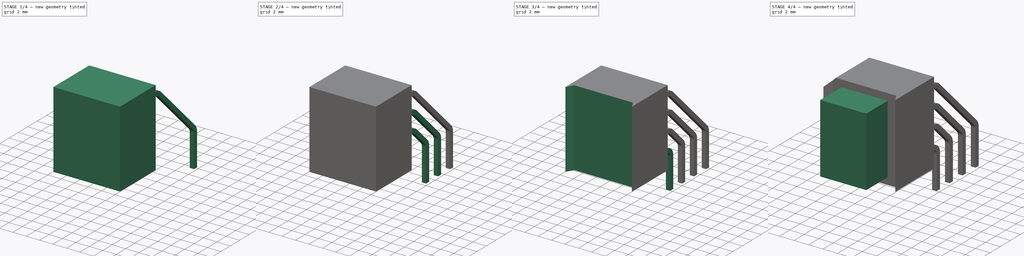
[diagram: build sequence overview — one tinted view per stage of 4, left to right]
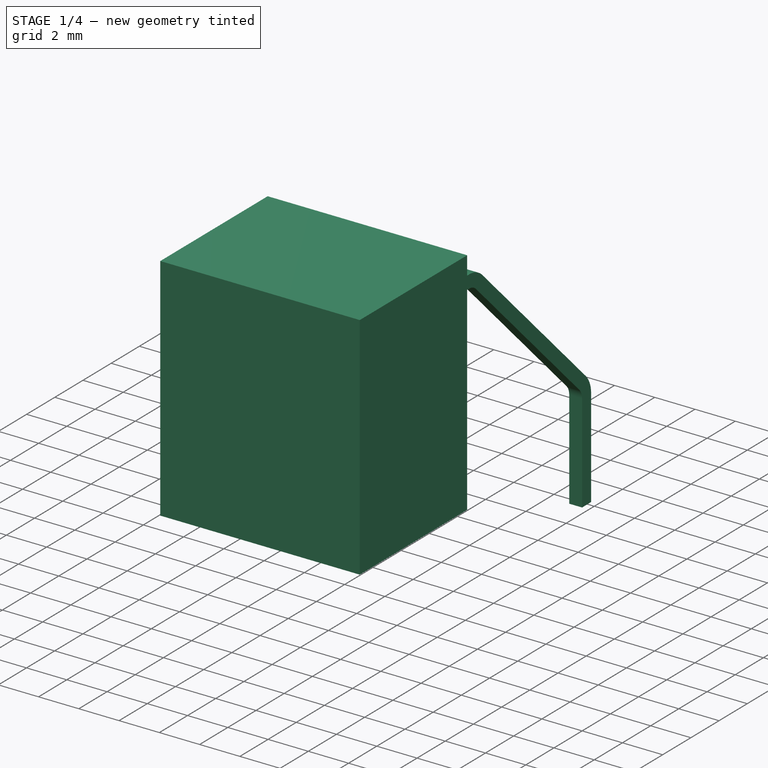
[diagram: stage 1 of 4 — iso view after this stage's code; geometry added in this stage tinted green]
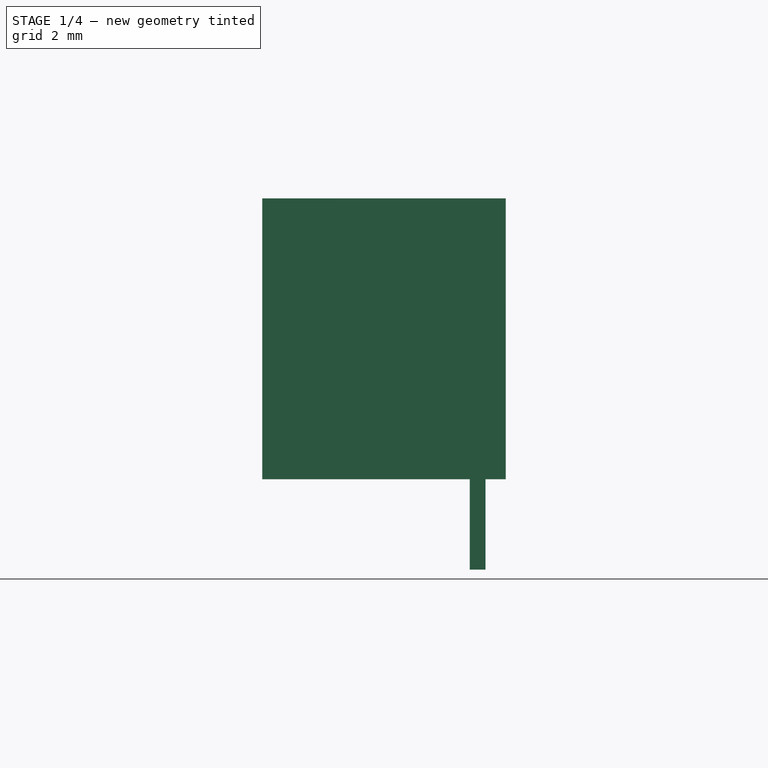
[diagram: stage 1 of 4 — front view after this stage's code; geometry added in this stage tinted green]
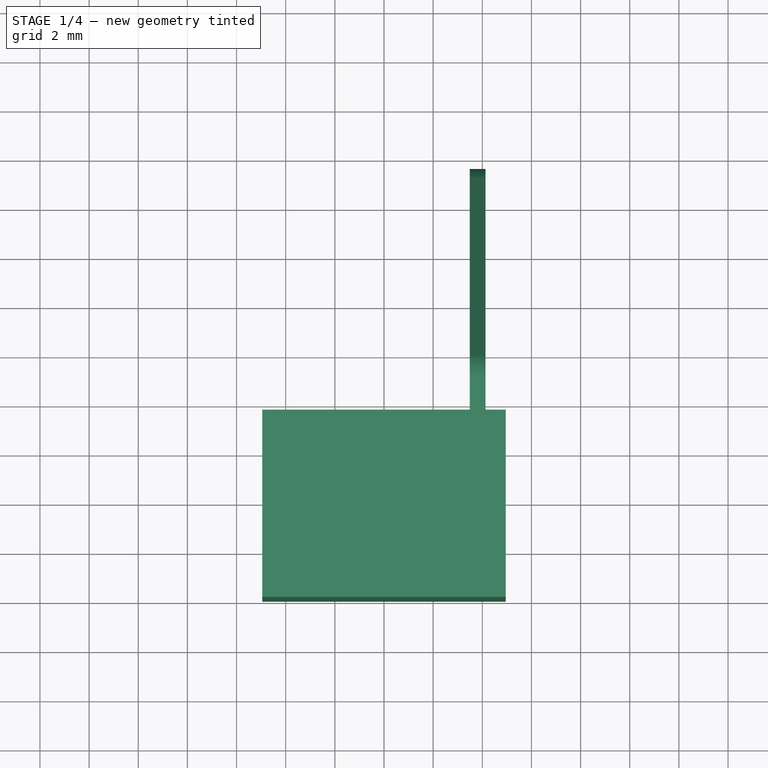
[diagram: stage 1 of 4 — top view after this stage's code; geometry added in this stage tinted green]
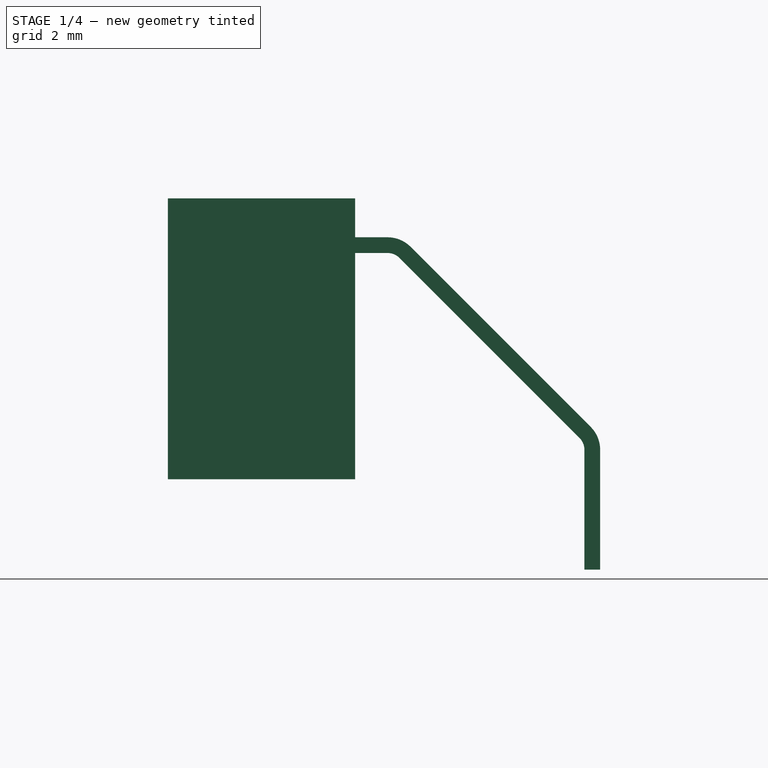
[diagram: stage 1 of 4 — right view after this stage's code; geometry added in this stage tinted green]
FCSTD DOCUMENT  (FreeCAD 0.20R29603 (Git))
Label: ARIES_08-810-90
License: All rights reserved
LicenseURL: http://en.wikipedia.org/wiki/All_rights_reserved
objects: Sketcher::SketchObject×11, PartDesign::AdditivePipe×4, PartDesign::Pad×2, PartDesign::Mirrored×1, PartDesign::Pocket×1, PartDesign::Chamfer×1, PartDesign::Body×1
note: 29 computed .brp shape members not serialized (recipe doc carries the construction recipe); baked Part::Feature solids carry a one-line shape summary decoded from their .brp

FEATURE [Sketcher::SketchObject] Sketch
  FullyConstrained = true
  MapMode = 5
  Placement = pos=(0,0,0) rot=(1,0,0;1.5708rad)
  Support = -> [XZ_Plane]
  sketch-geometry (4):
    g0: LineSegment StartX=-4.955 StartY=11.43 StartZ=0 EndX=-4.955 EndY=0 EndZ=0
    g1: LineSegment StartX=-4.955 StartY=0 StartZ=0 EndX=4.955 EndY=0 EndZ=0
    g2: LineSegment StartX=4.955 StartY=0 StartZ=0 EndX=4.955 EndY=11.43 EndZ=0
    g3: LineSegment StartX=4.955 StartY=11.43 StartZ=0 EndX=-4.955 EndY=11.43 EndZ=0
  constraints (11):
    c: Coincident(g0,g1)
    c: Coincident(g1,g2)
    c: Coincident(g2,g3)
    c: Coincident(g3,g0)
    c: Horizontal(g1)
    c: Horizontal(g3)
    c: Vertical(g0)
    c: Vertical(g2)
    c: DistanceX(g3,g3) = 9.91
    c: DistanceY(g2,g2) = 11.43
    c: Symmetric(g1,g1,g-1)
FEATURE [PartDesign::Pad] Pad
  Direction = (0,-1,-2e-16)
  Length = 7.62
  Length2 = 10
  Placement = pos=(0,0,0) rot=(1,0,0;1.5708rad)
  Profile = -> Sketch
  ReferenceAxis = -> Sketch [N_Axis]
  Reversed = true
  Type = 0
FEATURE [Sketcher::SketchObject] Sketch001
  FullyConstrained = true
  MapMode = 5
  Placement = pos=(0,0,0) rot=(0.57735,0.57735,0.57735;2.0944rad)
  Support = -> [YZ_Plane]
  sketch-geometry (5):
    g0: LineSegment StartX=0 StartY=9.525 StartZ=0 EndX=8.94289 EndY=9.525 EndZ=0
    g1: ArcOfCircle CenterX=8.94289 CenterY=8.525 CenterZ=0 NormalX=0 NormalY=0 NormalZ=1 AngleXU=0 Radius=1 StartAngle=0.785398 EndAngle=1.5708
    g2: LineSegment StartX=9.65 StartY=9.23211 StartZ=0 EndX=16.9771 EndY=1.905 EndZ=0
    g3: ArcOfCircle CenterX=16.27 CenterY=1.19789 CenterZ=0 NormalX=0 NormalY=0 NormalZ=1 AngleXU=0 Radius=1 StartAngle=1e-16 EndAngle=0.785398
    g4: LineSegment StartX=17.27 StartY=1.19789 StartZ=0 EndX=17.27 EndY=-3.68 EndZ=0
  constraints (14):
    c: PointOnObject(g0,g-2)
    c: Horizontal(g0)
    c: Tangent(g0,g1) = 1.5708
    c: Tangent(g1,g2) = 1.5708
    c: Tangent(g2,g3) = 1.5708
    c: Tangent(g3,g4) = 1.5708
    c: Vertical(g4)
    c: Equal(g1,g3)
    c: DistanceY(g-1,g0) = 9.525
    c: DistanceX(g0,g1) = 9.65
    c: DistanceX(g1,g4) = 7.62
    c: DistanceY(g4,g-1) = 3.68
    c: Radius(g1) = 1
    c: DistanceY(g-1,g2) = 1.905
FEATURE [Sketcher::SketchObject] Sketch002
  FullyConstrained = true
  MapMode = 5
  Placement = pos=(0,0,0) rot=(1,0,0;1.5708rad)
  Support = -> [XZ_Plane]
  sketch-geometry (5):
    g0: LineSegment StartX=3.49 StartY=9.845 StartZ=0 EndX=3.49 EndY=9.205 EndZ=0
    g1: LineSegment StartX=3.49 StartY=9.205 StartZ=0 EndX=4.13 EndY=9.205 EndZ=0
    g2: LineSegment StartX=4.13 StartY=9.205 StartZ=0 EndX=4.13 EndY=9.845 EndZ=0
    g3: LineSegment StartX=4.13 StartY=9.845 StartZ=0 EndX=3.49 EndY=9.845 EndZ=0
    g4: GeomPoint X=3.81 Y=9.525 Z=0
  constraints (13):
    c: Coincident(g0,g1)
    c: Coincident(g1,g2)
    c: Coincident(g2,g3)
    c: Coincident(g3,g0)
    c: Horizontal(g1)
    c: Horizontal(g3)
    c: Vertical(g0)
    c: Vertical(g2)
    c: Symmetric(g1,g0,g4)
    c: DistanceX(g3,g3) = 0.64
    c: Equal(g3,g0)
    c: DistanceX(g-1,g4) = 3.81
    c: DistanceY(g-1,g4) = 9.525
FEATURE [Sketcher::SketchObject] Sketch003
  FullyConstrained = true
  MapMode = 5
  Placement = pos=(0,0,0) rot=(0.57735,0.57735,0.57735;2.0944rad)
  Support = -> [YZ_Plane]
  sketch-geometry (5):
    g0: LineSegment StartX=0 StartY=6.985 StartZ=0 EndX=8.94289 EndY=6.985 EndZ=0
    g1: ArcOfCircle CenterX=8.94289 CenterY=5.985 CenterZ=0 NormalX=0 NormalY=0 NormalZ=1 AngleXU=0 Radius=1 StartAngle=0.785398 EndAngle=1.5708
    g2: LineSegment StartX=9.65 StartY=6.69211 StartZ=0 EndX=14.4371 EndY=1.905 EndZ=0
    g3: ArcOfCircle CenterX=13.73 CenterY=1.19789 CenterZ=0 NormalX=0 NormalY=0 NormalZ=1 AngleXU=0 Radius=1 StartAngle=2e-16 EndAngle=0.785398
    g4: LineSegment StartX=14.73 StartY=1.19789 StartZ=0 EndX=14.73 EndY=-3.68 EndZ=0
  constraints (14):
    c: PointOnObject(g0,g-2)
    c: Horizontal(g0)
    c: Tangent(g0,g1) = 1.5708
    c: Tangent(g1,g2) = 1.5708
    c: Tangent(g2,g3) = 1.5708
    c: Tangent(g3,g4) = 1.5708
    c: Vertical(g4)
    c: Equal(g1,g3)
    c: DistanceY(g-1,g0) = 6.985
    c: DistanceY(g4,g-1) = 3.68
    c: DistanceY(g-1,g2) = 1.905
    c: DistanceX(g0,g1) = 9.65
    c: Radius(g1) = 1
    c: DistanceX(g1,g4) = 5.08
FEATURE [PartDesign::AdditivePipe] AdditivePipe
  AuxilleryCurvelinear = true
  AuxillerySpineTangent = false
  BaseFeature = -> Pad
  Binormal = (0,0,0)
  Mode = 0
  Placement = pos=(0,0,0) rot=(1,0,0;1.5708rad)
  Profile = -> Sketch002
  Spine = -> Sketch001
  SpineTangent = false
  Transformation = 0
  Transition = 0
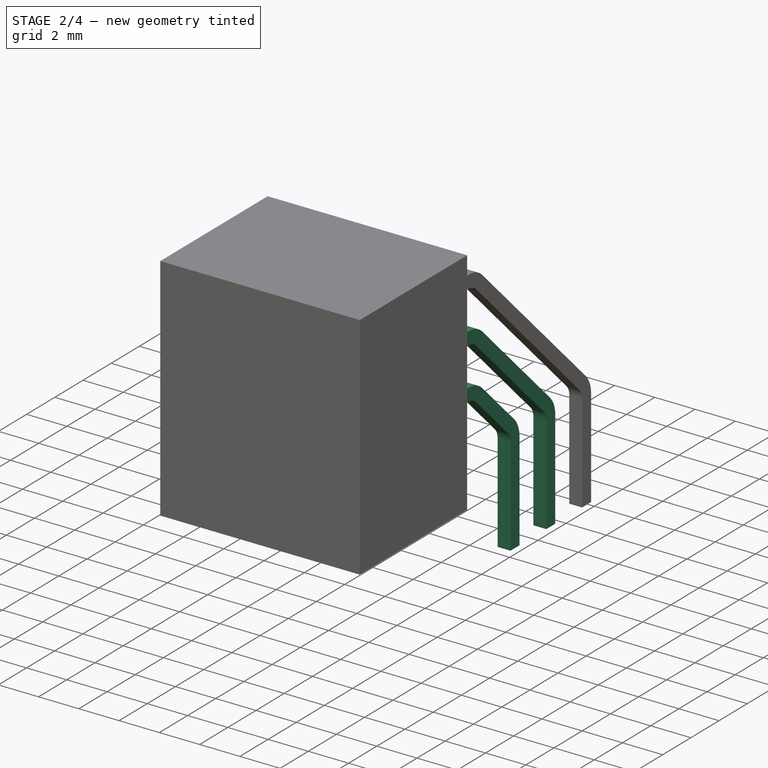
[diagram: stage 2 of 4 — iso view after this stage's code; geometry added in this stage tinted green]
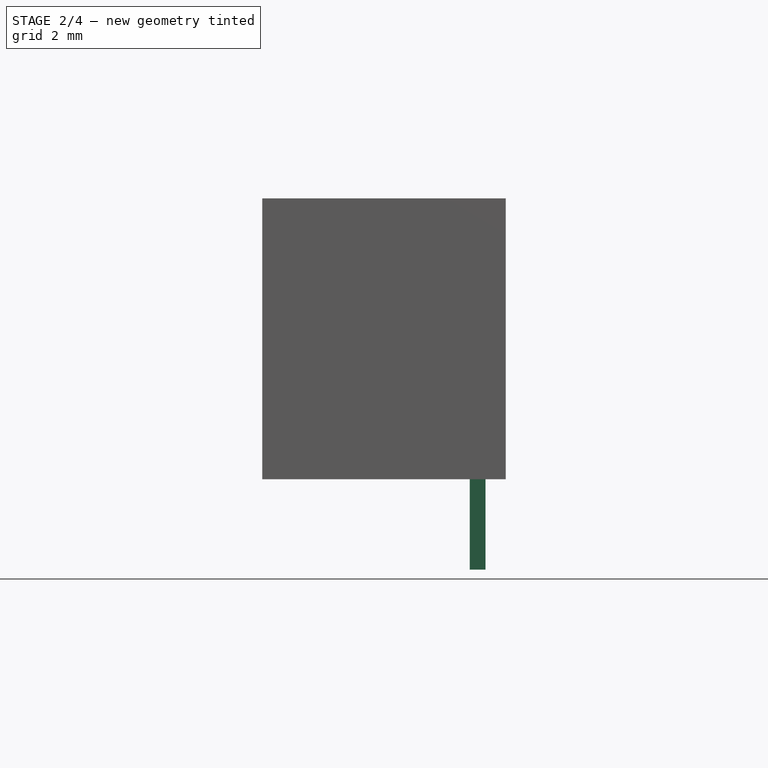
[diagram: stage 2 of 4 — front view after this stage's code; geometry added in this stage tinted green]
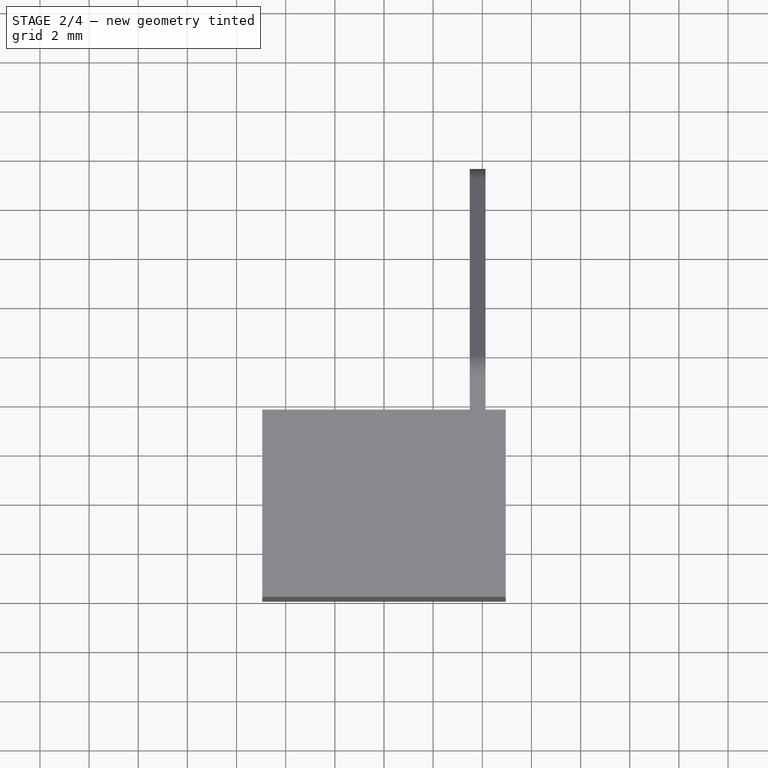
[diagram: stage 2 of 4 — top view after this stage's code; geometry added in this stage tinted green]
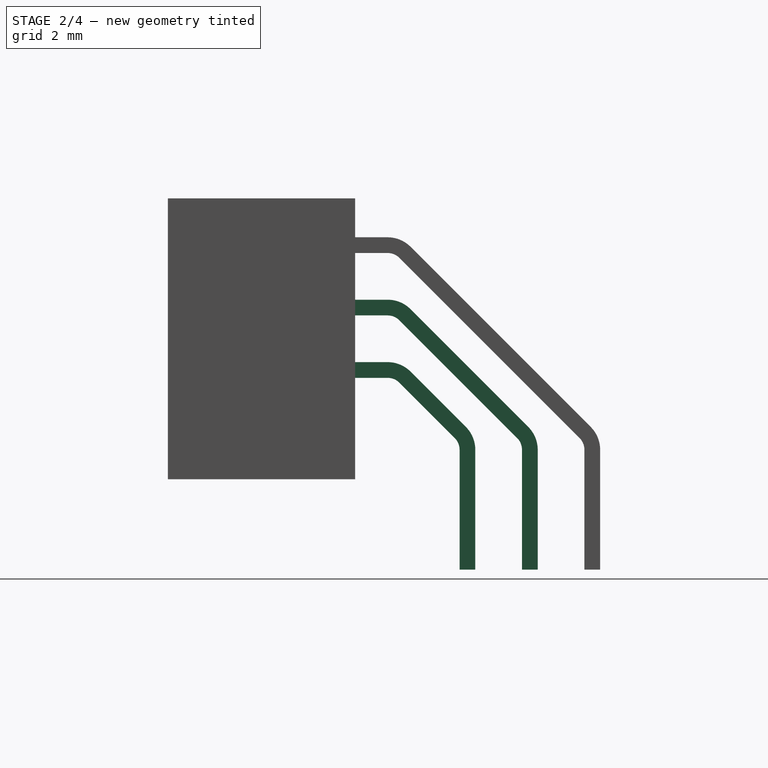
[diagram: stage 2 of 4 — right view after this stage's code; geometry added in this stage tinted green]
FEATURE [Sketcher::SketchObject] Sketch004
  FullyConstrained = true
  MapMode = 5
  Placement = pos=(0,0,0) rot=(1,0,0;1.5708rad)
  Support = -> [XZ_Plane]
  sketch-geometry (5):
    g0: LineSegment StartX=3.49 StartY=7.305 StartZ=0 EndX=3.49 EndY=6.665 EndZ=0
    g1: LineSegment StartX=3.49 StartY=6.665 StartZ=0 EndX=4.13 EndY=6.665 EndZ=0
    g2: LineSegment StartX=4.13 StartY=6.665 StartZ=0 EndX=4.13 EndY=7.305 EndZ=0
    g3: LineSegment StartX=4.13 StartY=7.305 StartZ=0 EndX=3.49 EndY=7.305 EndZ=0
    g4: GeomPoint X=3.81 Y=6.985 Z=0
  constraints (13):
    c: Coincident(g0,g1)
    c: Coincident(g1,g2)
    c: Coincident(g2,g3)
    c: Coincident(g3,g0)
    c: Horizontal(g1)
    c: Horizontal(g3)
    c: Vertical(g0)
    c: Vertical(g2)
    c: Symmetric(g1,g0,g4)
    c: Equal(g3,g0)
    c: DistanceX(g3,g3) = 0.64
    c: DistanceX(g-1,g4) = 3.81
    c: DistanceY(g-1,g4) = 6.985
FEATURE [PartDesign::AdditivePipe] AdditivePipe001
  AuxilleryCurvelinear = true
  AuxillerySpineTangent = false
  BaseFeature = -> AdditivePipe
  Binormal = (0,0,0)
  Mode = 0
  Placement = pos=(0,0,0) rot=(1,0,0;1.5708rad)
  Profile = -> Sketch004
  Spine = -> Sketch003
  SpineTangent = false
  Transformation = 0
  Transition = 0
FEATURE [Sketcher::SketchObject] Sketch005
  FullyConstrained = true
  MapMode = 5
  Placement = pos=(0,0,0) rot=(0.57735,0.57735,0.57735;2.0944rad)
  Support = -> [YZ_Plane]
  sketch-geometry (5):
    g0: LineSegment StartX=0 StartY=4.445 StartZ=0 EndX=8.94289 EndY=4.445 EndZ=0
    g1: ArcOfCircle CenterX=8.94289 CenterY=3.445 CenterZ=0 NormalX=0 NormalY=0 NormalZ=1 AngleXU=0 Radius=1 StartAngle=0.785398 EndAngle=1.5708
    g2: LineSegment StartX=9.65 StartY=4.15211 StartZ=0 EndX=11.8971 EndY=1.905 EndZ=0
    g3: ArcOfCircle CenterX=11.19 CenterY=1.19789 CenterZ=0 NormalX=0 NormalY=0 NormalZ=1 AngleXU=0 Radius=1 StartAngle=1e-16 EndAngle=0.785398
    g4: LineSegment StartX=12.19 StartY=1.19789 StartZ=0 EndX=12.19 EndY=-3.68 EndZ=0
  constraints (14):
    c: PointOnObject(g0,g-2)
    c: Horizontal(g0)
    c: Tangent(g0,g1) = 1.5708
    c: Tangent(g1,g2) = 1.5708
    c: Tangent(g2,g3) = 1.5708
    c: Tangent(g3,g4) = 1.5708
    c: Vertical(g4)
    c: Equal(g1,g3)
    c: Radius(g1) = 1
    c: DistanceY(g4,g-1) = 3.68
    c: DistanceY(g-1,g0) = 4.445
    c: DistanceX(g0,g1) = 9.65
    c: DistanceY(g-1,g2) = 1.905
    c: DistanceX(g1,g4) = 2.54
FEATURE [Sketcher::SketchObject] Sketch006
  FullyConstrained = true
  MapMode = 5
  Placement = pos=(0,0,0) rot=(1,0,0;1.5708rad)
  Support = -> [XZ_Plane]
  sketch-geometry (5):
    g0: LineSegment StartX=3.49 StartY=4.765 StartZ=0 EndX=3.49 EndY=4.125 EndZ=0
    g1: LineSegment StartX=3.49 StartY=4.125 StartZ=0 EndX=4.13 EndY=4.125 EndZ=0
    g2: LineSegment StartX=4.13 StartY=4.125 StartZ=0 EndX=4.13 EndY=4.765 EndZ=0
    g3: LineSegment StartX=4.13 StartY=4.765 StartZ=0 EndX=3.49 EndY=4.765 EndZ=0
    g4: GeomPoint X=3.81 Y=4.445 Z=0
  constraints (13):
    c: Coincident(g0,g1)
    c: Coincident(g1,g2)
    c: Coincident(g2,g3)
    c: Coincident(g3,g0)
    c: Horizontal(g1)
    c: Horizontal(g3)
    c: Vertical(g0)
    c: Vertical(g2)
    c: Symmetric(g1,g0,g4)
    c: DistanceX(g-1,g4) = 3.81
    c: DistanceY(g-1,g4) = 4.445
    c: Equal(g3,g0)
    c: DistanceX(g3,g3) = 0.64
FEATURE [PartDesign::AdditivePipe] AdditivePipe002
  AuxilleryCurvelinear = true
  AuxillerySpineTangent = false
  BaseFeature = -> AdditivePipe001
  Binormal = (0,0,0)
  Mode = 0
  Placement = pos=(0,0,0) rot=(1,0,0;1.5708rad)
  Profile = -> Sketch006
  Spine = -> Sketch005
  SpineTangent = false
  Transformation = 0
  Transition = 0
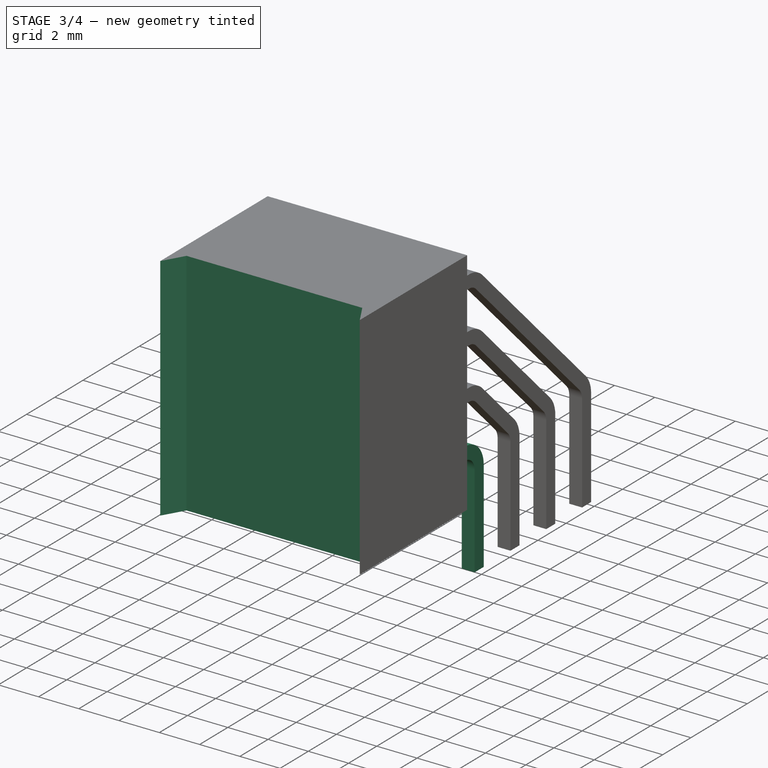
[diagram: stage 3 of 4 — iso view after this stage's code; geometry added in this stage tinted green]
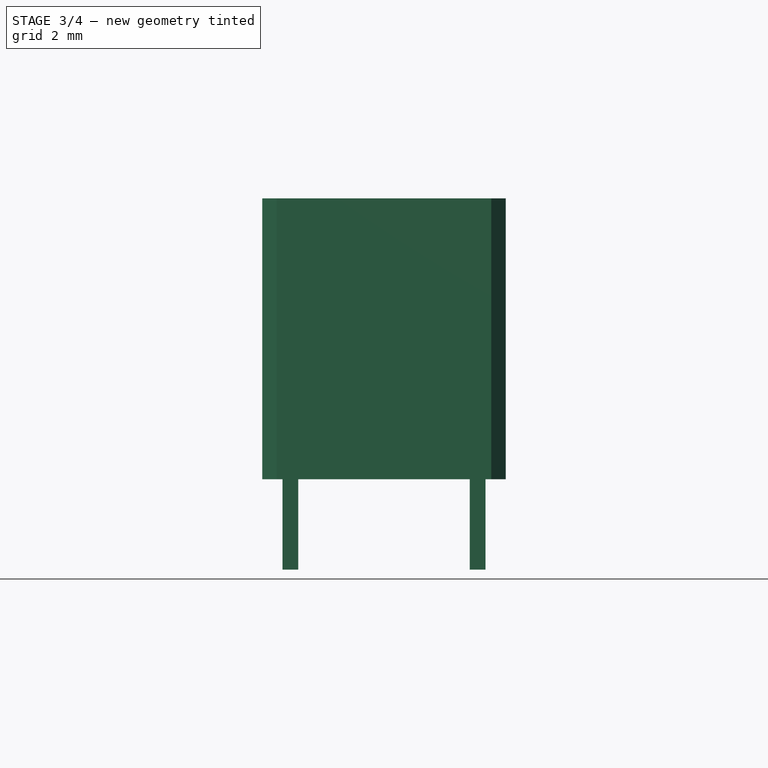
[diagram: stage 3 of 4 — front view after this stage's code; geometry added in this stage tinted green]
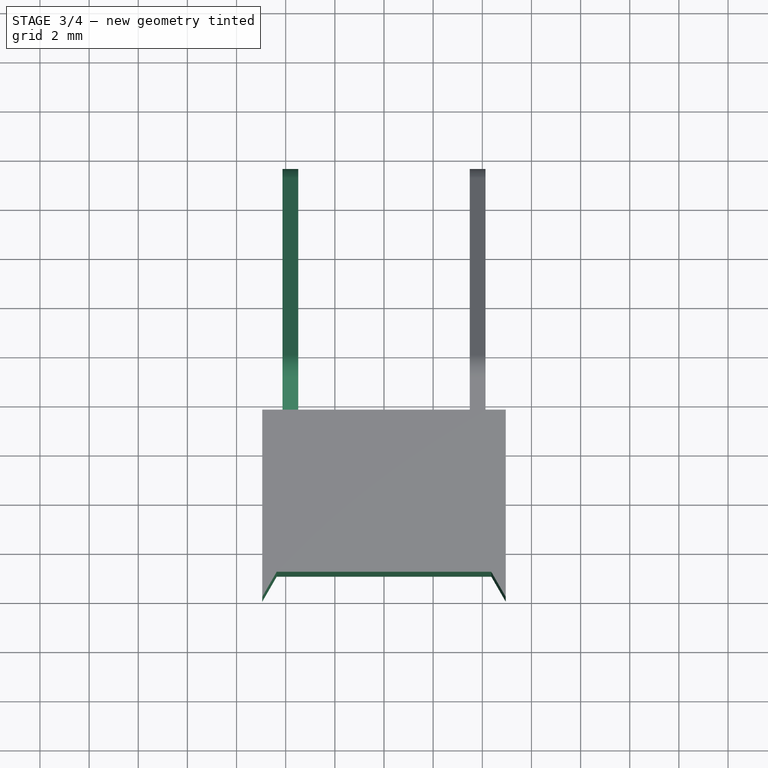
[diagram: stage 3 of 4 — top view after this stage's code; geometry added in this stage tinted green]
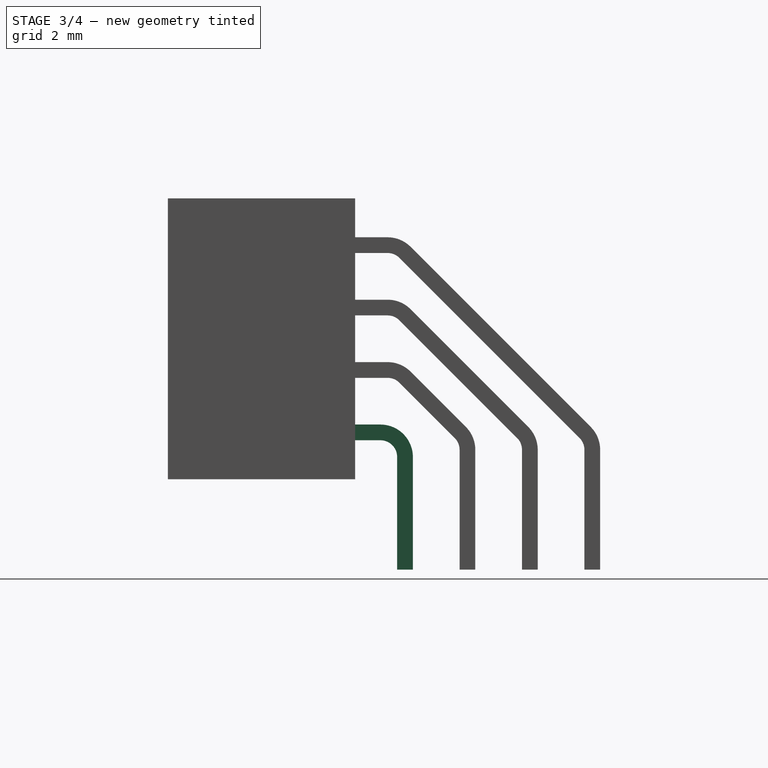
[diagram: stage 3 of 4 — right view after this stage's code; geometry added in this stage tinted green]
FEATURE [Sketcher::SketchObject] Sketch007
  FullyConstrained = true
  MapMode = 5
  Placement = pos=(0,0,0) rot=(0.57735,0.57735,0.57735;2.0944rad)
  Support = -> [YZ_Plane]
  sketch-geometry (3):
    g0: LineSegment StartX=0 StartY=1.905 StartZ=0 EndX=8.65 EndY=1.905 EndZ=0
    g1: ArcOfCircle CenterX=8.65 CenterY=0.905 CenterZ=0 NormalX=0 NormalY=0 NormalZ=1 AngleXU=0 Radius=1 StartAngle=5e-16 EndAngle=1.5708
    g2: LineSegment StartX=9.65 StartY=0.905 StartZ=0 EndX=9.65 EndY=-3.68 EndZ=0
  constraints (9):
    c: PointOnObject(g0,g-2)
    c: Horizontal(g0)
    c: Tangent(g0,g1) = 1.5708
    c: Tangent(g1,g2) = 1.5708
    c: Vertical(g2)
    c: DistanceX(g0,g1) = 9.65
    c: DistanceY(g2,g-1) = 3.68
    c: DistanceY(g-1,g0) = 1.905
    c: Radius(g1) = 1
FEATURE [Sketcher::SketchObject] Sketch008
  FullyConstrained = true
  MapMode = 5
  Placement = pos=(0,0,0) rot=(1,0,0;1.5708rad)
  Support = -> [XZ_Plane]
  sketch-geometry (5):
    g0: LineSegment StartX=3.49 StartY=2.225 StartZ=0 EndX=3.49 EndY=1.585 EndZ=0
    g1: LineSegment StartX=3.49 StartY=1.585 StartZ=0 EndX=4.13 EndY=1.585 EndZ=0
    g2: LineSegment StartX=4.13 StartY=1.585 StartZ=0 EndX=4.13 EndY=2.225 EndZ=0
    g3: LineSegment StartX=4.13 StartY=2.225 StartZ=0 EndX=3.49 EndY=2.225 EndZ=0
    g4: GeomPoint X=3.81 Y=1.905 Z=0
  constraints (13):
    c: Coincident(g0,g1)
    c: Coincident(g1,g2)
    c: Coincident(g2,g3)
    c: Coincident(g3,g0)
    c: Horizontal(g1)
    c: Horizontal(g3)
    c: Vertical(g0)
    c: Vertical(g2)
    c: Symmetric(g1,g0,g4)
    c: Equal(g3,g0)
    c: DistanceX(g-1,g4) = 3.81
    c: DistanceY(g-1,g4) = 1.905
    c: DistanceX(g3,g3) = 0.64
FEATURE [PartDesign::AdditivePipe] AdditivePipe003
  AuxilleryCurvelinear = true
  AuxillerySpineTangent = false
  BaseFeature = -> AdditivePipe002
  Binormal = (0,0,0)
  Mode = 0
  Placement = pos=(0,0,0) rot=(1,0,0;1.5708rad)
  Profile = -> Sketch008
  Spine = -> Sketch007
  SpineTangent = false
  Transformation = 0
  Transition = 0
FEATURE [PartDesign::Mirrored] Mirrored
  BaseFeature = -> AdditivePipe003
  MirrorPlane = -> Sketch002 [V_Axis]
  Originals = -> [AdditivePipe,AdditivePipe001,AdditivePipe002,AdditivePipe003]
  Placement = pos=(0,0,0) rot=(1,0,0;1.5708rad)
FEATURE [Sketcher::SketchObject] Sketch009
  ExternalGeometry = -> [AdditivePipe002]
  FullyConstrained = true
  MapMode = 5
  Placement = pos=(0,0,0) rot=(1,0,0;3.14159rad)
  Support = -> [AdditivePipe002]
  sketch-geometry (4):
    g0: LineSegment StartX=-4.955 StartY=0 StartZ=0 EndX=4.955 EndY=0 EndZ=0
    g1: LineSegment StartX=4.955 StartY=0 StartZ=0 EndX=4.3661 EndY=-1.02 EndZ=0
    g2: LineSegment StartX=4.3661 StartY=-1.02 StartZ=0 EndX=-4.3661 EndY=-1.02 EndZ=0
    g3: LineSegment StartX=-4.3661 StartY=-1.02 StartZ=0 EndX=-4.955 EndY=0 EndZ=0
  constraints (10):
    c: Coincident(g-3,g0)
    c: Coincident(g0,g-4)
    c: Coincident(g0,g1)
    c: Coincident(g1,g2)
    c: Horizontal(g2)
    c: Coincident(g2,g3)
    c: Coincident(g3,g0)
    c: Equal(g3,g1)
    c: DistanceY(g2,g0) = 1.02
    c: Angle(g-3,g3) = 0.523599
FEATURE [PartDesign::Pocket] Pocket
  BaseFeature = -> Mirrored
  Direction = (0,3e-16,1)
  Length = 5
  Length2 = 5
  Placement = pos=(0,0,0) rot=(1,0,0;1.5708rad)
  Profile = -> Sketch009
  ReferenceAxis = -> Sketch009 [N_Axis]
  Type = 1
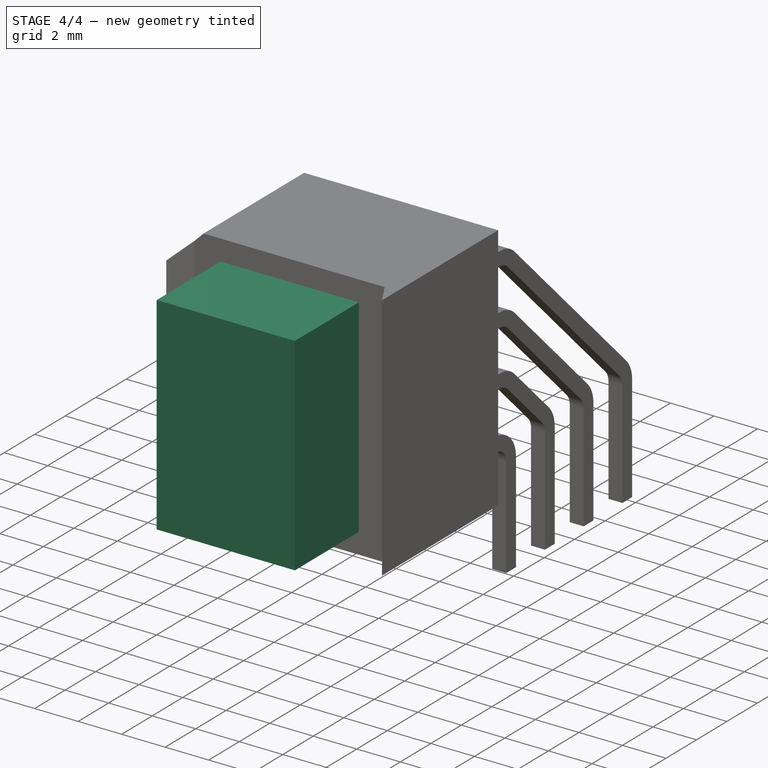
[diagram: stage 4 of 4 — iso view after this stage's code; geometry added in this stage tinted green]
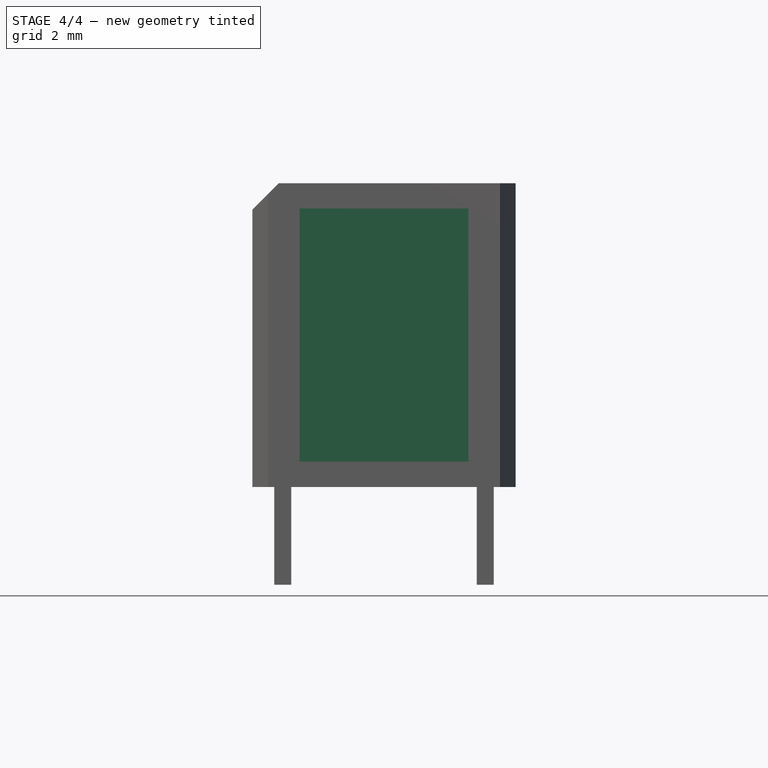
[diagram: stage 4 of 4 — front view after this stage's code; geometry added in this stage tinted green]
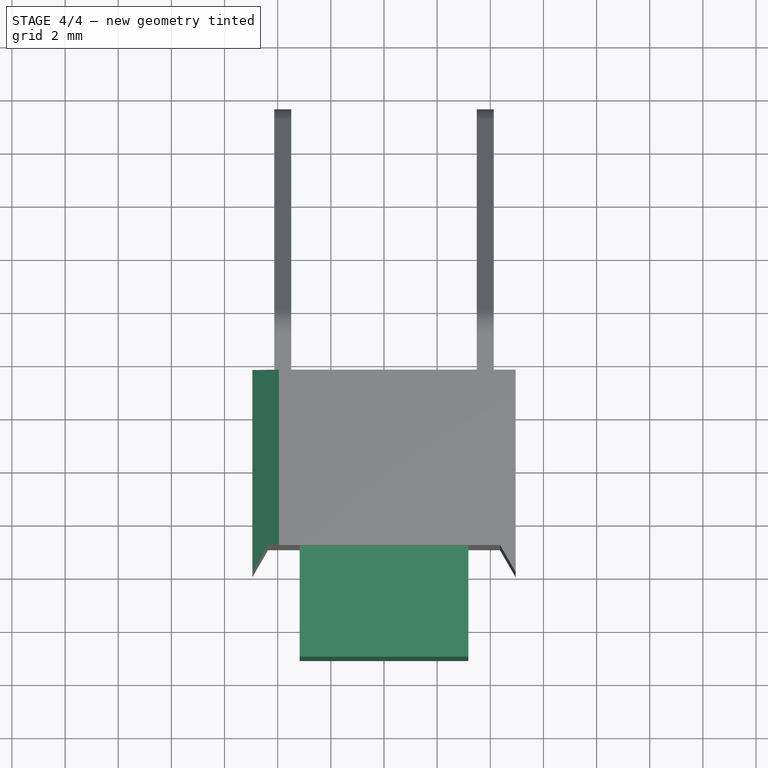
[diagram: stage 4 of 4 — top view after this stage's code; geometry added in this stage tinted green]
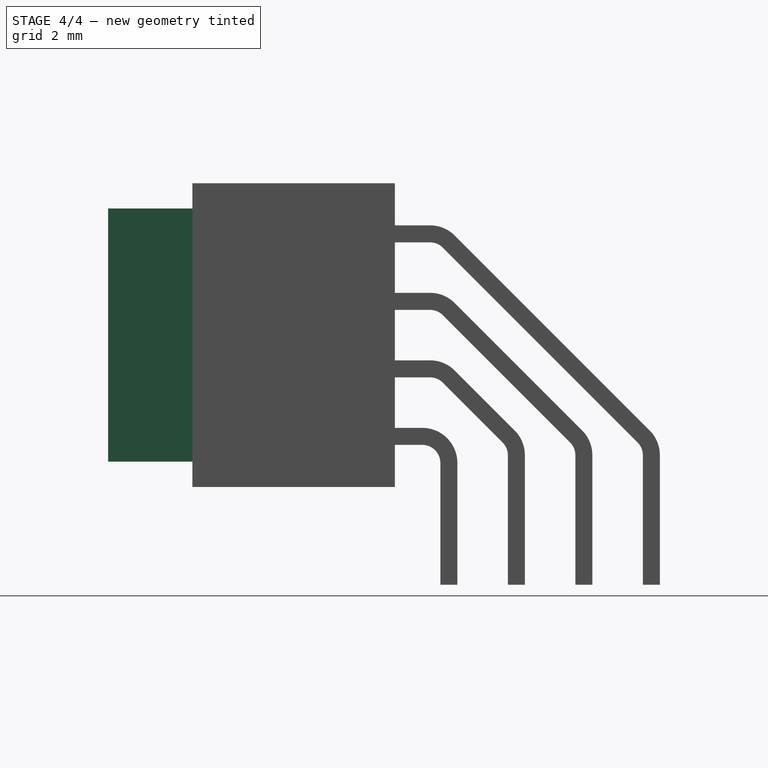
[diagram: stage 4 of 4 — right view after this stage's code; geometry added in this stage tinted green]
FEATURE [Sketcher::SketchObject] Sketch010
  FullyConstrained = true
  MapMode = 5
  Placement = pos=(0,1.02,-2e-16) rot=(1,0,0;1.5708rad)
  Support = -> [Pocket]
  sketch-geometry (5):
    g0: LineSegment StartX=-3.175 StartY=10.4775 StartZ=0 EndX=-3.175 EndY=0.9525 EndZ=0
    g1: LineSegment StartX=-3.175 StartY=0.9525 StartZ=0 EndX=3.175 EndY=0.9525 EndZ=0
    g2: LineSegment StartX=3.175 StartY=0.9525 StartZ=0 EndX=3.175 EndY=10.4775 EndZ=0
    g3: LineSegment StartX=3.175 StartY=10.4775 StartZ=0 EndX=-3.175 EndY=10.4775 EndZ=0
    g4: GeomPoint X=0 Y=5.715 Z=0
  constraints (13):
    c: Coincident(g0,g1)
    c: Coincident(g1,g2)
    c: Coincident(g2,g3)
    c: Coincident(g3,g0)
    c: Horizontal(g1)
    c: Horizontal(g3)
    c: Vertical(g0)
    c: Vertical(g2)
    c: Symmetric(g1,g0,g4)
    c: DistanceX(g3,g3) = 6.35
    c: DistanceY(g0,g0) = 9.525
    c: PointOnObject(g4,g-2)
    c: DistanceY(g-1,g4) = 5.715
FEATURE [PartDesign::Pad] Pad001
  BaseFeature = -> Pocket
  Direction = (0,-1,4e-16)
  Length = 4.19
  Length2 = 10
  Placement = pos=(0,0,0) rot=(1,0,0;1.5708rad)
  Profile = -> Sketch010
  ReferenceAxis = -> Sketch010 [N_Axis]
  Type = 0
FEATURE [PartDesign::Chamfer] Chamfer
  Angle = 45
  Base = -> Pad001 [Edge1]
  BaseFeature = -> Pad001
  ChamferType = 0
  FlipDirection = false
  Placement = pos=(0,0,0) rot=(1,0,0;1.5708rad)
  Size = 1
  Size2 = 1
  SupportTransform = false
  UseAllEdges = false
FEATURE [PartDesign::Body] Body
  Group = -> [Sketch,Pad,Sketch001,Sketch002,Sketch003,AdditivePipe,Sketch004,AdditivePipe001,Sketch005,Sketch006,AdditivePipe002,Sketch007,Sketch008,AdditivePipe003,Mirrored,Sketch009,Pocket,Sketch010,Pad001,Chamfer]
  Origin = -> Origin
  Tip = -> Chamfer
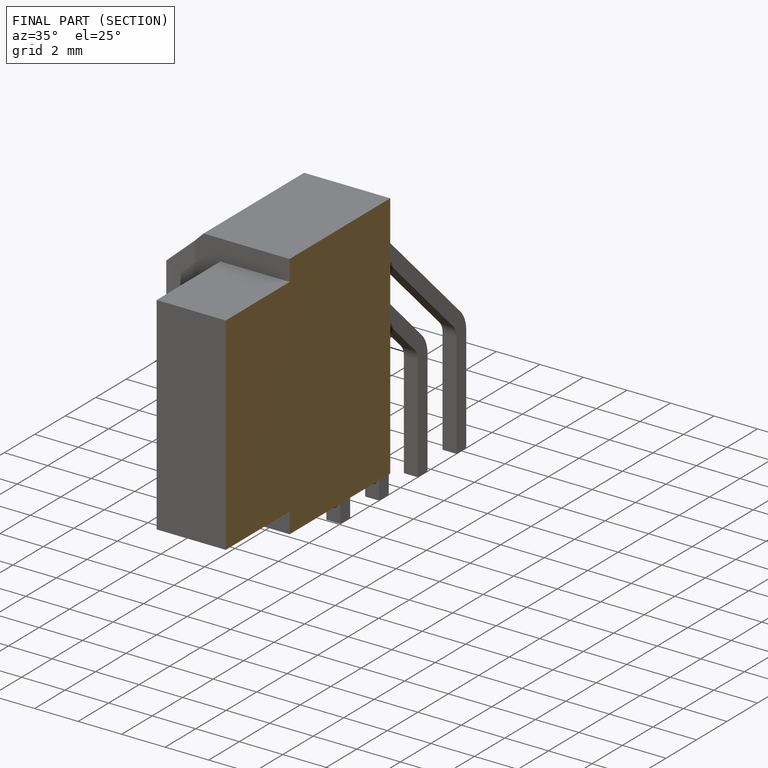
[diagram: finished part — half-section view (interior)]
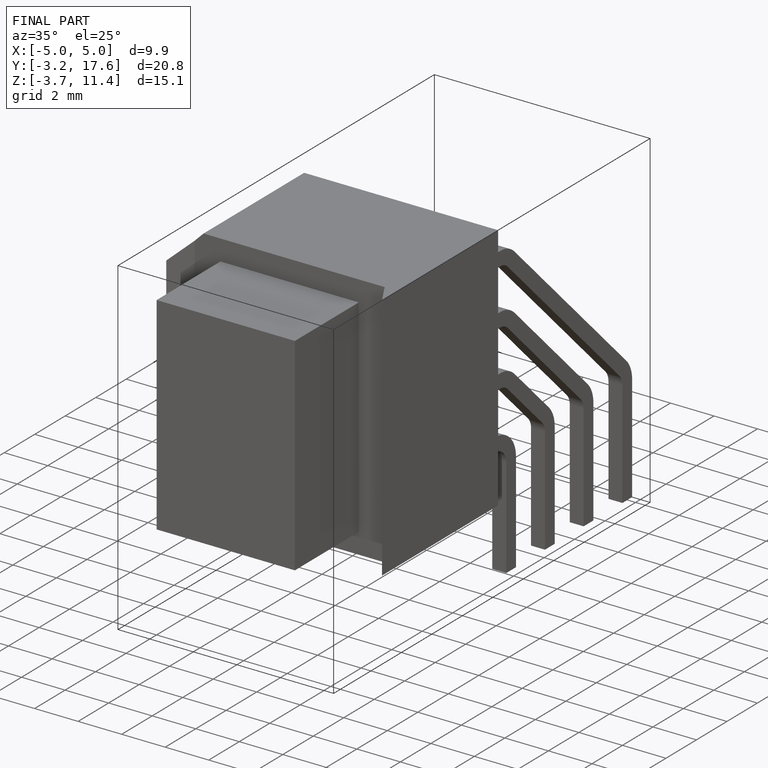
[diagram: finished part — iso view with bounding-box wireframe]
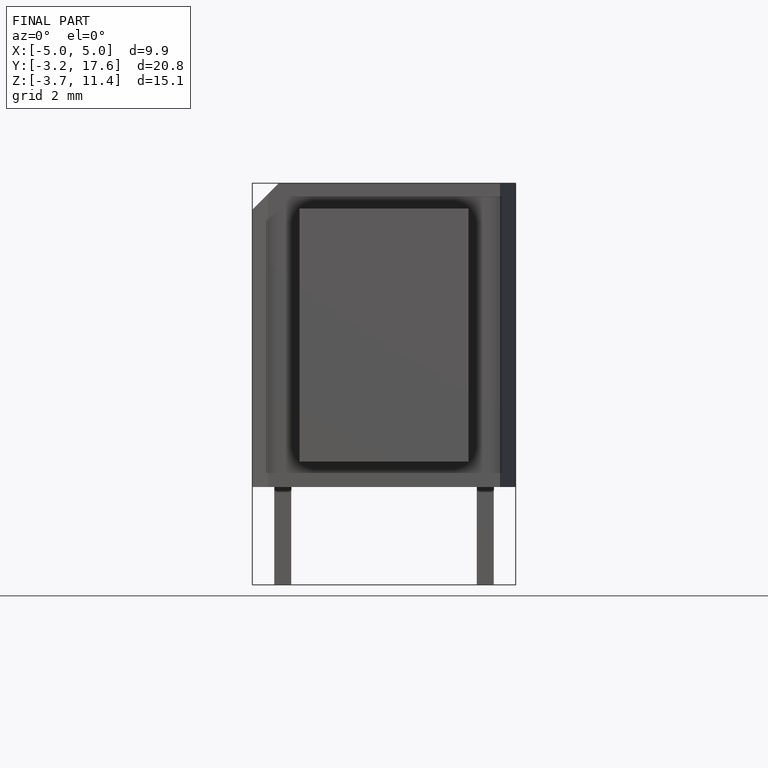
[diagram: finished part — front view with bounding-box wireframe]
